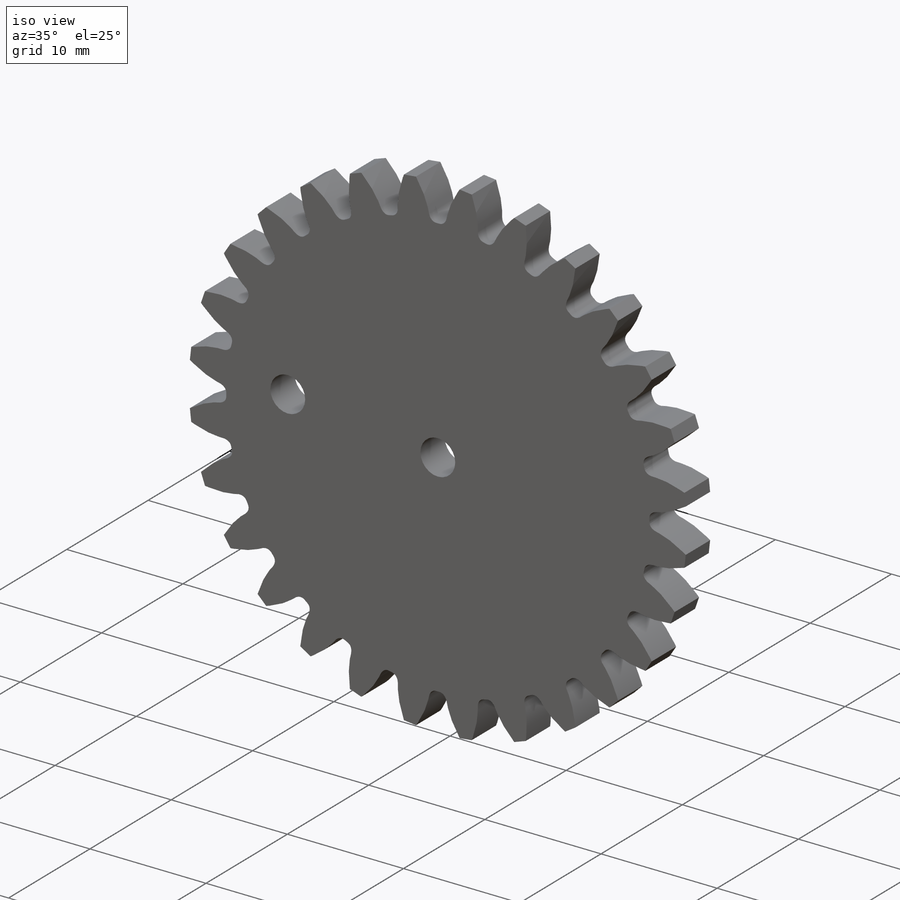
[diagram: iso view]
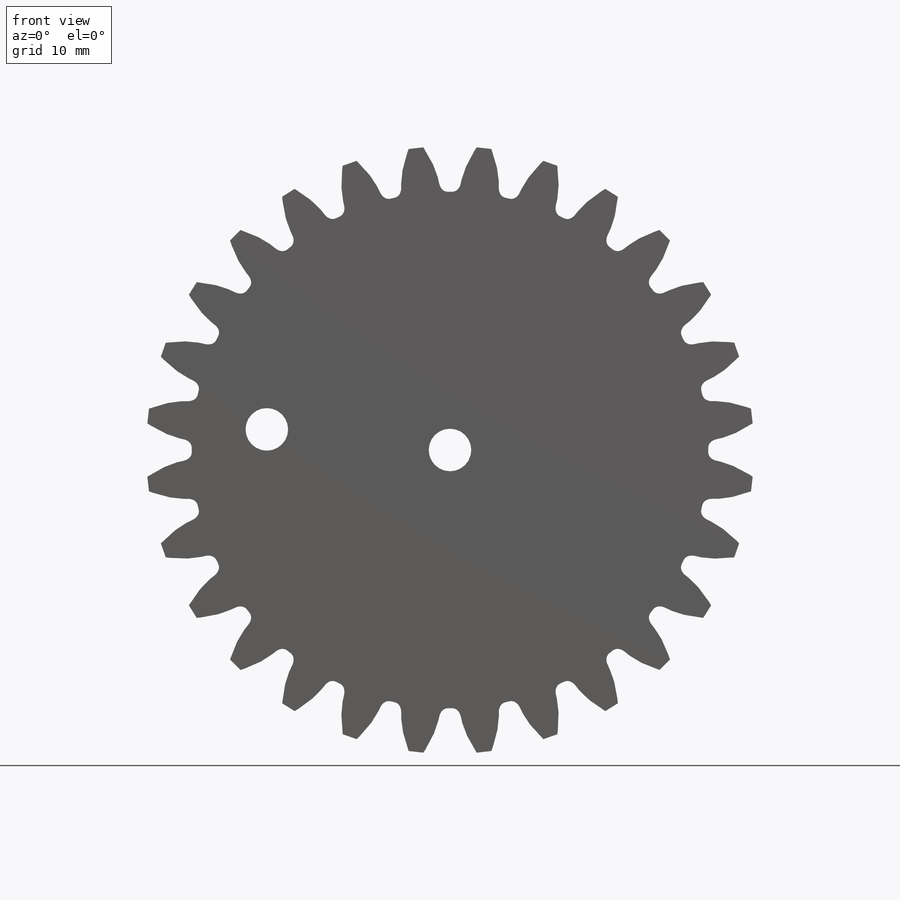
[diagram: front view]
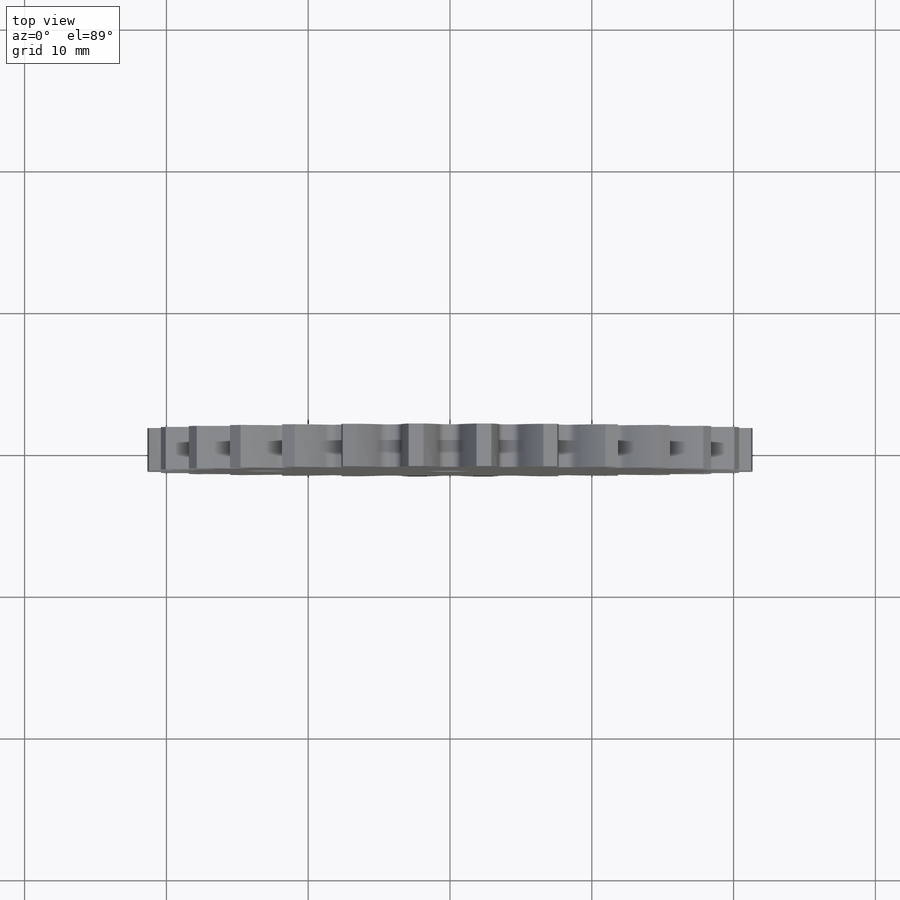
[diagram: top view]
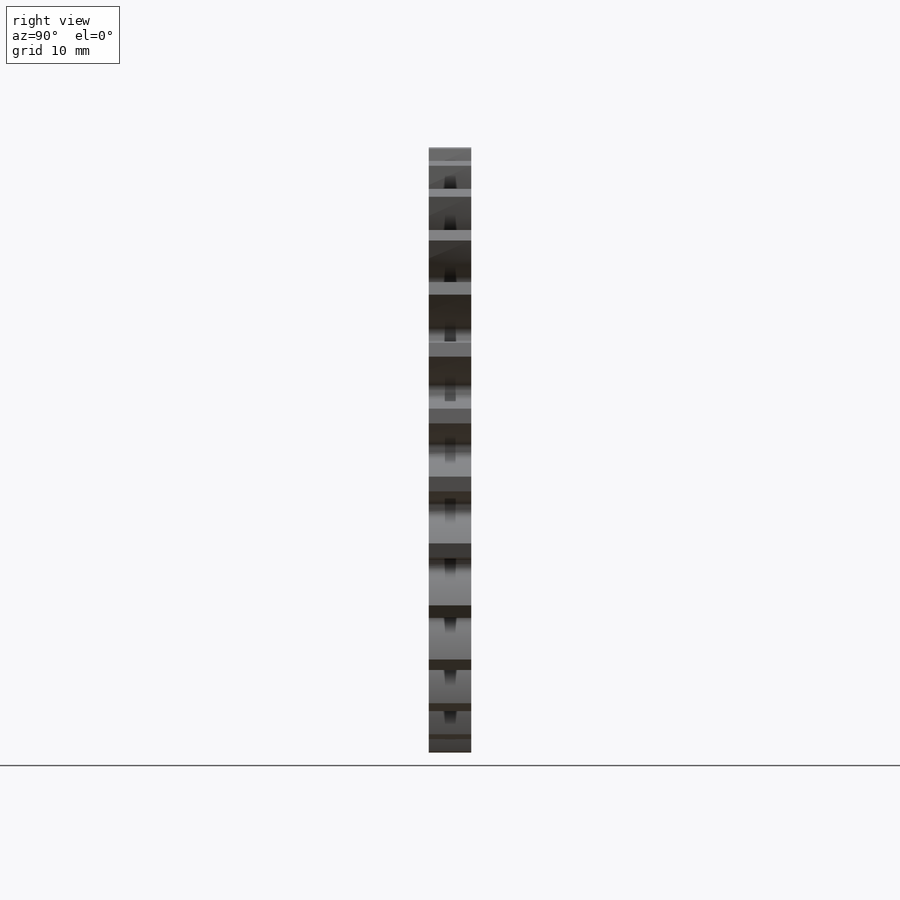
[diagram: right view]
SOLIDWORKS PART (.sldprt)
format: sldprt  version: not decoded by parser v0  size: 305,664 bytes
history: native  units: mm
features: sketch x3, cut_extrude x2, material x1, extrude x1, pattern_circular x1 (+12 scaffold rows collapsed)
feature tree (20):
  scaffold x12  (default folders/planes/origin — collapsed)
  material  "Material <not specified>"
  sketch  "Gear-BaseSketch"  dims[D1=~42.857143mm]
  extrude  "Company Standard #1, 40.0000mm P.D."  Depth=3mm
  sketch  "Tooth-Sketch; Backlash: 0.0000mm"
  cut_extrude  "Tooth-Cut, D.P.=17.7800, P.A.=20.000deg"  Depth=10mm
  pattern_circular  "Tooth Pattern, 28 / 28"  Count=28 Angle=12.857143deg
  sketch  "Sketch1"  dims[D1=3.0mm D2=13.0mm]
  cut_extrude  "Cut-Extrude2"  [1 undecoded]
decode coverage: 5 of 7 modeling features carry decoded parameters
note: ~ marks probable driven/reference dimensions
note: 1 parameter value undecoded
note: suppression state not decoded; provenance and decode notes live in map.json
